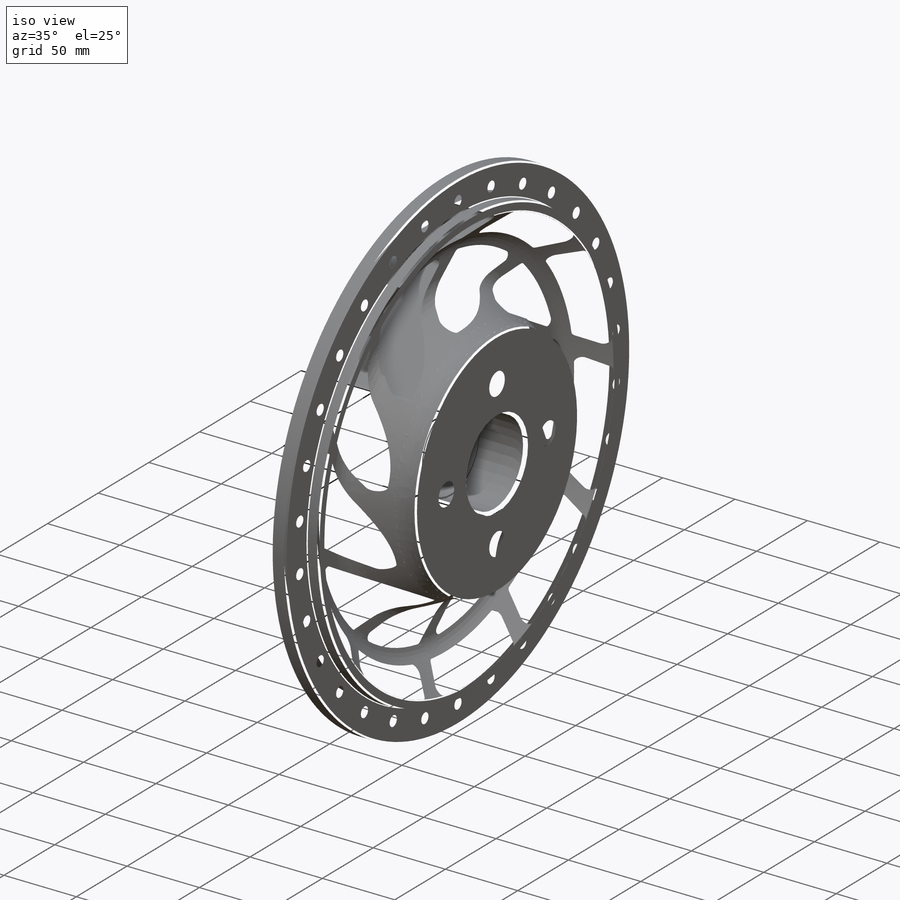
[diagram: iso view]
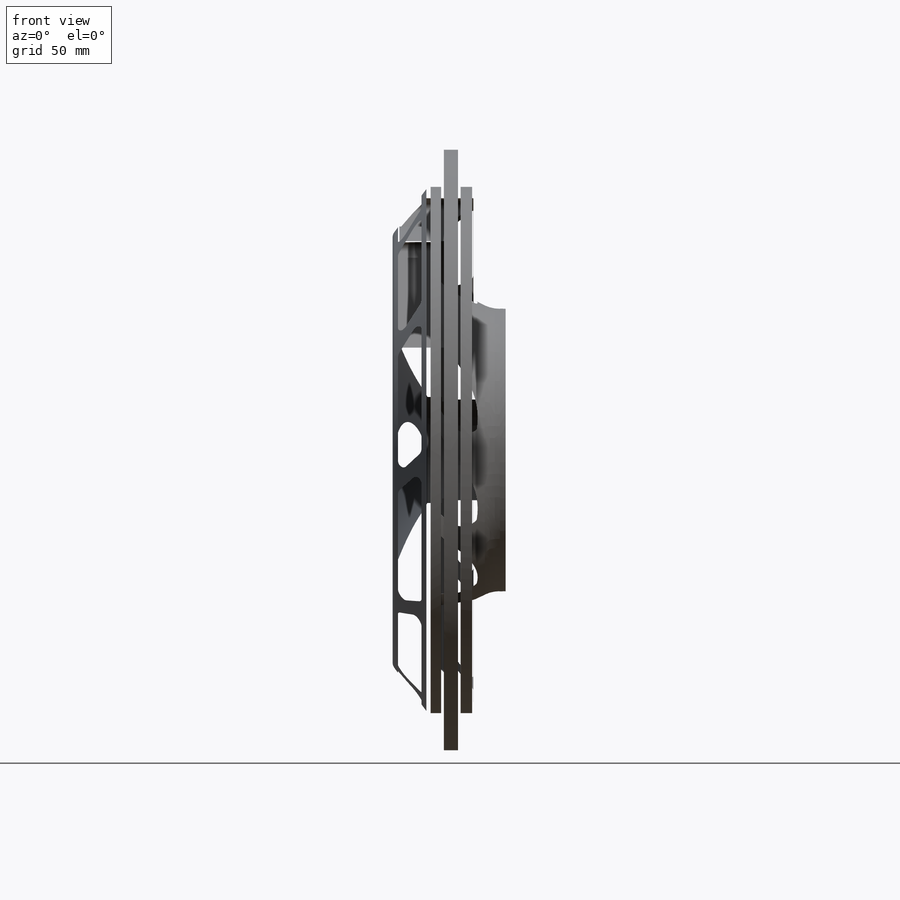
[diagram: front view]
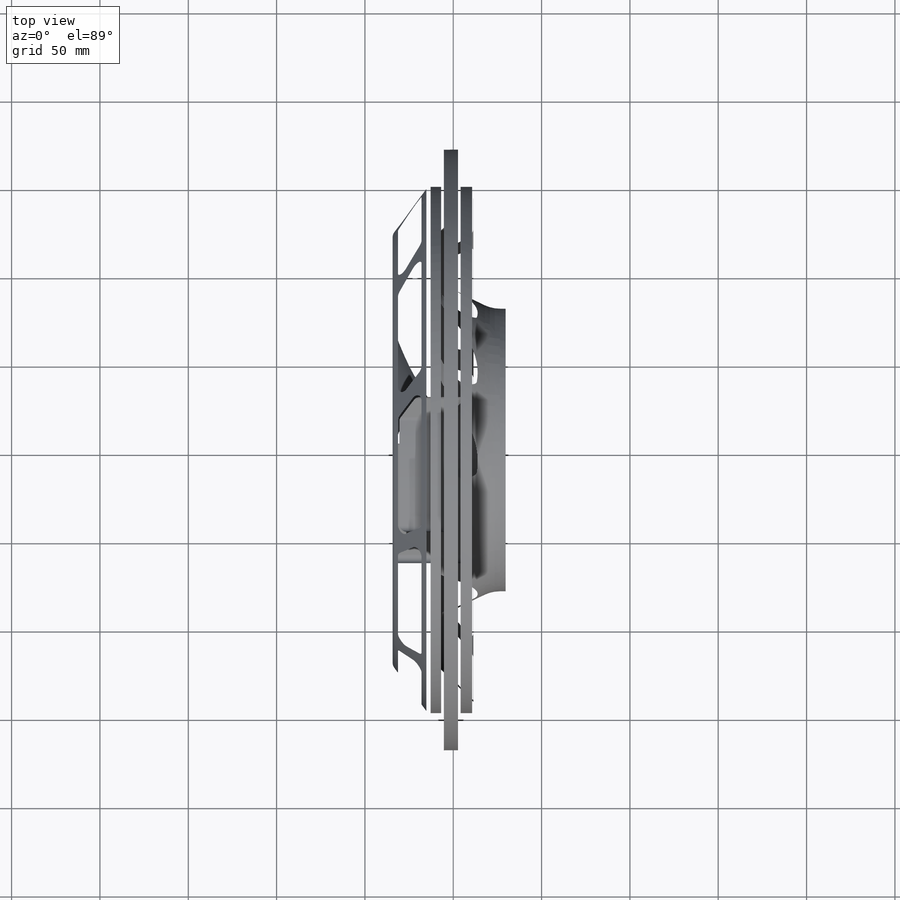
[diagram: top view]
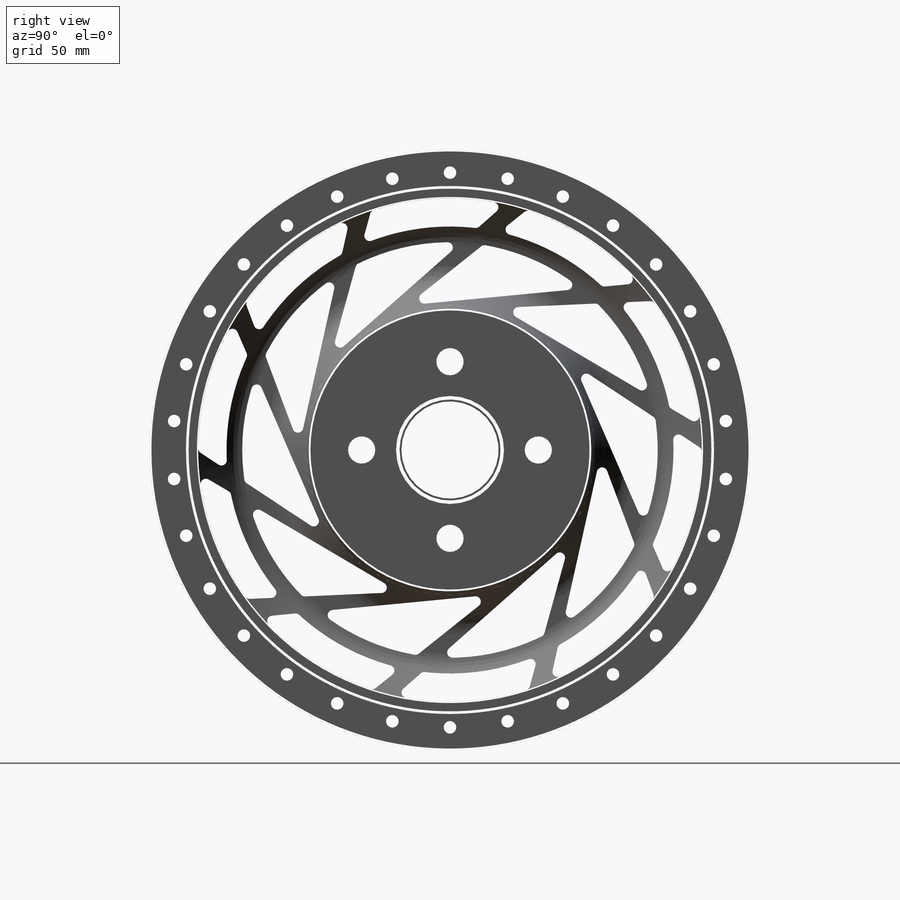
[diagram: right view]
SOLIDWORKS PART (.sldprt)
format: sldprt  version: not decoded by parser v0  size: 1,880,576 bytes
history: native  units: mm
features: fillet x10, plane x5, sketch x5, cut_extrude x4, pattern_circular x3, chamfer x2, material x1, revolve x1 (+10 scaffold rows collapsed)
feature tree (41):
  scaffold x10  (default folders/planes/origin — collapsed)
  material  "6061-T6 (SS)"
  plane  "Спереди"
  plane  "Сверху"
  plane  "Справа"
  sketch  "Эскиз1"  dims[c1.D14=~226.750172mm c1.D16=~178.422133mm c1.D9=~226.750172mm c1.D21=15.0mm c1.D22=380.0mm c1.D1=80.0mm c1.D2=170.0mm c1.D3=8.0mm c1.D4=10.0mm c1.D5=70.0mm c1.D6=22.0mm c1.D7=~153.152961mm c1.D8=~73.518689mm c2.D9=155.95mm c2.D10=148.95mm c2.D11=30.66mm c2.D12=~13.042602deg c2.D13=15.0mm c2.D15=~238.395868mm c2.D17=~178.840293mm c2.D18=~46.433479deg c2.D19=~6.111465mm c2.D7=8.0mm c2.D3=~6.337052mm c2.D4=10.0mm c2.D8=122.0mm c3.D9=77.0mm c3.D12=8.0mm c3.D14=28.55mm c3.D15=27.5mm c3.D16=30.0mm c3.D18=32.0mm c3.D20=5.0mm c3.D13=38.0mm c3.D21=51.45mm c4.D21=19.0deg c4.D23=64.0mm c4.D24=~15.666961mm c5.D24=135.0deg c5.D13=41.0mm c5.D22=19.05mm c5.D23=33.0mm c5.D9=69.0mm c5.D21=65.0mm]
  revolve  "Повернуть1"  Angle=360deg
  fillet  "Скругление1"  Radius=20mm
  fillet  "Скругление12"  Radius=13mm
  plane  "Плоскость1"  Offset=50mm
  fillet  "Скругление16"  Radius=5mm
  sketch  "Эскиз3"  dims[c1.D1=285.0mm c1.D2=253.0mm c1.D5=~117.602053mm c2.D1=118.0mm c2.D2=7.0mm c2.D3=~34.420434mm c2.D4=~41.566343mm c2.D5=~130.008963mm c3.D5=~36.454242deg c3.D6=~21.534281mm c4.D6=~36.454242deg c5.D6=~137.545951mm c6.D6=~36.454242deg c6.D5=~160.13697mm c7.D5=30.0deg c7.D6=~21.106216mm c8.D6=~115.280211deg c8.D7=~21.51698mm c9.D7=~36.454242deg c9.D8=~116.586758mm c9.D9=~98.314049mm c9.D10=7.0mm c9.D11=~38.325761mm c10.D11=16.0deg c10.D12=18.0mm c10.D13=~20.527524mm c11.D13=~22.630807deg c11.D14=~8.066235mm c11.D15=~10.328106mm c11.D9=70.0mm c11.D6=~17.423661mm c12.D6=~12.631574deg c12.D3=~67.719108mm c12.D4=~52.036659mm c13.D6=~160.13697mm c14.D6=~48.563257deg c14.D7=98.8124mm c15.D7=~33.121359deg]
  cut_extrude  "Вырез-Вытянуть1"  Depth=10mm
  fillet  "Скругление4"  Radius=3mm
  sketch  "Эскиз4"  dims[D1=30.0mm D2=50.0mm]
  cut_extrude  "Вырез-Вытянуть2"  Depth=65mm
  sketch  "Эскиз5"  dims[D1=15.4mm]
  cut_extrude  "Вырез-Вытянуть3"  [1 undecoded]
  sketch  "Эскиз6"  dims[D2=7.1mm D1=157.0mm]
  cut_extrude  "Вырез-Вытянуть4"  Depth=70mm
  pattern_circular  "Круговой массив5"  Count=30 Angle=360deg
  fillet  "Скругление9"  Radius=3mm
  plane  "Плоскость2"  Offset=50mm
  chamfer  "Фаска1"  Distance=2mm Angle=45deg
  fillet  "Скругление13"  Radius=1mm
  fillet  "Скругление14"  Radius=1mm
  fillet  "Скругление15"  Radius=0.5mm
  fillet  "Скругление17"  Radius=1mm
  pattern_circular  "Круговой массив6"  Count=10 Angle=360deg
  chamfer  "Фаска3"  Distance=3mm Angle=60deg
  fillet  "Скругление18"  Radius=1mm
  pattern_circular  "Круговой массив7"  Count=4 Angle=360deg
decode coverage: 24 of 25 modeling features carry decoded parameters
note: ~ marks probable driven/reference dimensions
note: 1 parameter value undecoded
note: suppression state not decoded; provenance and decode notes live in map.json
